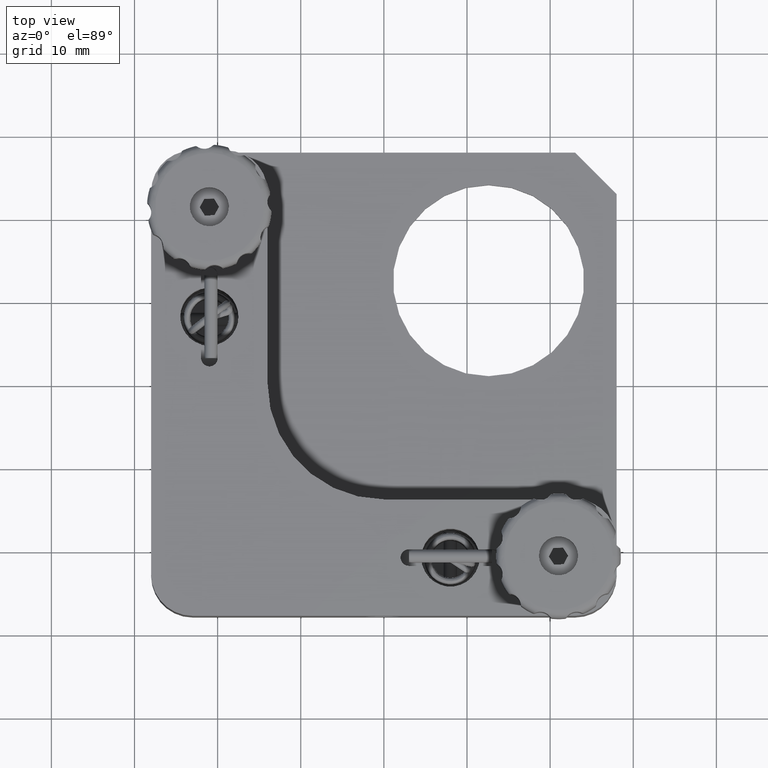
[diagram: clean part render]
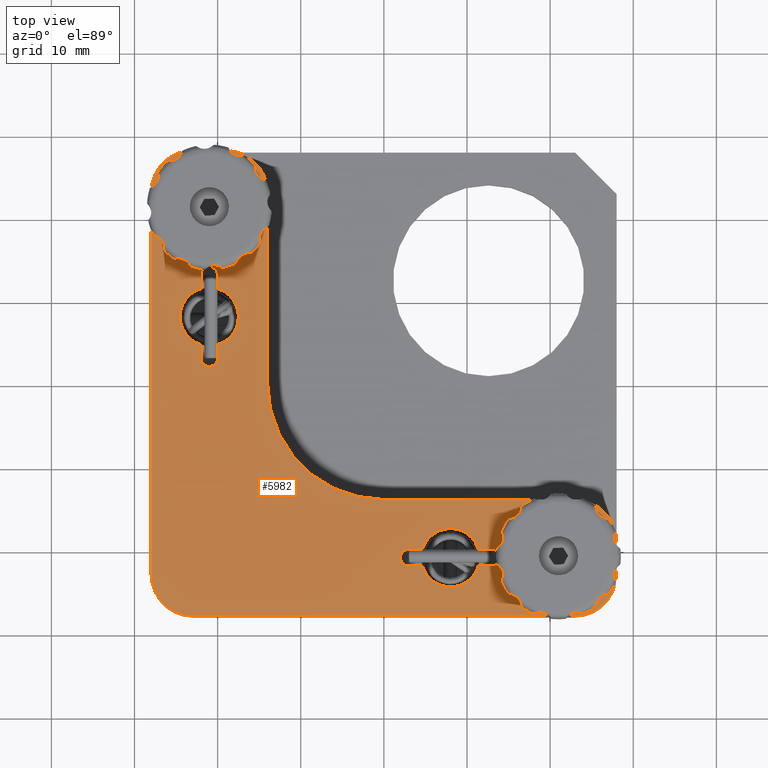
[diagram: same view with one face highlighted and labeled with its STEP entity id]
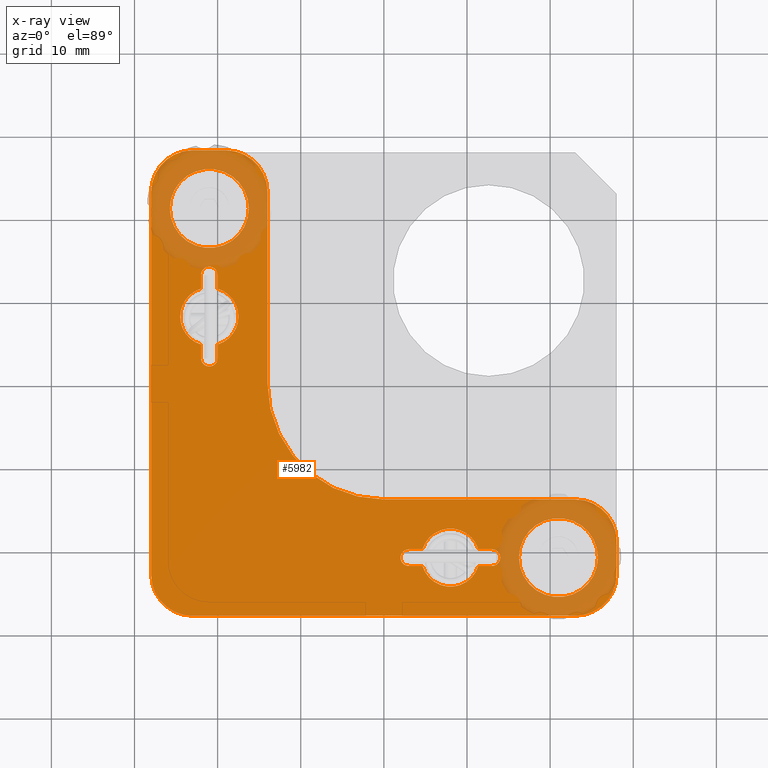
[diagram: x-ray of the same camera — body ghosted, the highlighted face saturated]
A machine part, top view. The second image highlights one B-rep face of the part: STEP entity #5982.
The next image is the same camera in x-ray: the body ghosted, the highlighted face saturated — about 16% of this face is hidden behind the body in this view.
In plain terms, the highlighted planar face has unit normal (0, 0, -1).
Its self-contained STEP definition (entity closure, byte-faithful):
#91 = DIRECTION ( 'NONE',  ( -1.000000000000000000, 0.0000000000000000000, 0.0000000000000000000 ) ) ;
#116 = VECTOR ( 'NONE', #20495, 1000.000000000000000 ) ;
#128 = DIRECTION ( 'NONE',  ( -1.000000000000000000, 0.0000000000000000000, 0.0000000000000000000 ) ) ;
#275 = CARTESIAN_POINT ( 'NONE',  ( 11.35410196624967200, -19.99999999999999600, 6.000000000000048000 ) ) ;
#405 = VERTEX_POINT ( 'NONE', #20147 ) ;
#412 = LINE ( 'NONE', #9128, #10854 ) ;
#451 = EDGE_CURVE ( 'NONE', #18178, #6273, #11936, .T. ) ;
#499 = VECTOR ( 'NONE', #10084, 1000.000000000000000 ) ;
#698 = DIRECTION ( 'NONE',  ( -1.000000000000000000, 0.0000000000000000000, 0.0000000000000000000 ) ) ;
#747 = EDGE_CURVE ( 'NONE', #12582, #7902, #10689, .T. ) ;
#840 = AXIS2_PLACEMENT_3D ( 'NONE', #19495, #2856, #15568 ) ;
#951 = ORIENTED_EDGE ( 'NONE', *, *, #7707, .F. ) ;
#1085 = EDGE_CURVE ( 'NONE', #7902, #5296, #17167, .T. ) ;
#1189 = LINE ( 'NONE', #7950, #7932 ) ;
#1196 = EDGE_LOOP ( 'NONE', ( #15850, #15635 ) ) ;
#1335 = DIRECTION ( 'NONE',  ( -0.0000000000000000000, -2.220446049250313500E-015, 1.000000000000000000 ) ) ;
#1432 = LINE ( 'NONE', #16735, #16118 ) ;
#1464 = EDGE_CURVE ( 'NONE', #3262, #9403, #18147, .T. ) ;
#1519 = EDGE_LOOP ( 'NONE', ( #19504, #4957, #5061, #13216, #15755, #8548, #4801, #15204, #6222, #13073 ) ) ;
#1553 = VERTEX_POINT ( 'NONE', #15694 ) ;
#1625 = ORIENTED_EDGE ( 'NONE', *, *, #5603, .F. ) ;
#1713 = LINE ( 'NONE', #7593, #13633 ) ;
#1776 = CIRCLE ( 'NONE', #12187, 1.000000000000000900 ) ;
#1782 = CARTESIAN_POINT ( 'NONE',  ( -0.0000000000000000000, -1.332267629550188500E-014, 6.000000000000000000 ) ) ;
#1802 = CARTESIAN_POINT ( 'NONE',  ( -25.75000000000000700, 21.00000000000000000, 5.999999999999952000 ) ) ;
#1808 = DIRECTION ( 'NONE',  ( 0.0000000000000000000, 1.000000000000000000, -2.442490654175344800E-015 ) ) ;
#1924 = AXIS2_PLACEMENT_3D ( 'NONE', #6043, #20592, #4652 ) ;
#2176 = VERTEX_POINT ( 'NONE', #19387 ) ;
#2236 = DIRECTION ( 'NONE',  ( 0.0000000000000000000, 2.220446049250313500E-015, -1.000000000000000000 ) ) ;
#2272 = EDGE_CURVE ( 'NONE', #6583, #5601, #11101, .T. ) ;
#2282 = ORIENTED_EDGE ( 'NONE', *, *, #5337, .F. ) ;
#2378 = VECTOR ( 'NONE', #3825, 1000.000000000000000 ) ;
#2435 = EDGE_CURVE ( 'NONE', #405, #15332, #6178, .T. ) ;
#2475 = EDGE_CURVE ( 'NONE', #17961, #7658, #4150, .T. ) ;
#2513 = DIRECTION ( 'NONE',  ( 0.0000000000000000000, 2.220446049250313500E-015, -1.000000000000000000 ) ) ;
#2623 = LINE ( 'NONE', #18808, #116 ) ;
#2663 = DIRECTION ( 'NONE',  ( -1.000000000000000000, 7.542275982507868200E-017, -1.842193859848663800E-031 ) ) ;
#2852 = ORIENTED_EDGE ( 'NONE', *, *, #10044, .F. ) ;
#2856 = DIRECTION ( 'NONE',  ( 0.0000000000000000000, 2.220446049250313500E-015, -1.000000000000000000 ) ) ;
#2928 = DIRECTION ( 'NONE',  ( -1.000000000000000000, 0.0000000000000000000, 0.0000000000000000000 ) ) ;
#2962 = EDGE_CURVE ( 'NONE', #7658, #12099, #1189, .T. ) ;
#3113 = AXIS2_PLACEMENT_3D ( 'NONE', #18260, #18325, #6011 ) ;
#3130 = DIRECTION ( 'NONE',  ( 0.0000000000000000000, 2.220446049250313500E-015, -1.000000000000000000 ) ) ;
#3151 = CARTESIAN_POINT ( 'NONE',  ( -22.99999999999997200, -27.99999999999999600, 6.000000000000066600 ) ) ;
#3152 = VERTEX_POINT ( 'NONE', #18489 ) ;
#3258 = CARTESIAN_POINT ( 'NONE',  ( -20.00000000000000400, 12.99999999999998400, 5.999999999999971600 ) ) ;
#3262 = VERTEX_POINT ( 'NONE', #15726 ) ;
#3354 = CARTESIAN_POINT ( 'NONE',  ( -24.50000000000000400, 7.999999999999996400, 5.999999999999981300 ) ) ;
#3361 = EDGE_CURVE ( 'NONE', #18896, #4552, #13622, .T. ) ;
#3370 = LINE ( 'NONE', #17842, #14069 ) ;
#3400 = CARTESIAN_POINT ( 'NONE',  ( -18.99999999999999600, 23.00000000000000000, 5.999999999999943200 ) ) ;
#3437 = CARTESIAN_POINT ( 'NONE',  ( -20.00000000000000400, 2.999999999999986700, 5.999999999999990200 ) ) ;
#3484 = DIRECTION ( 'NONE',  ( 1.000000000000000000, 0.0000000000000000000, 0.0000000000000000000 ) ) ;
#3524 = CARTESIAN_POINT ( 'NONE',  ( -21.00000000000000400, 2.999999999999986700, 5.999999999999990200 ) ) ;
#3710 = AXIS2_PLACEMENT_3D ( 'NONE', #15025, #18227, #91 ) ;
#3825 = DIRECTION ( 'NONE',  ( 1.000000000000000000, 0.0000000000000000000, -0.0000000000000000000 ) ) ;
#4150 = CIRCLE ( 'NONE', #15583, 1.000000000000000900 ) ;
#4197 = VERTEX_POINT ( 'NONE', #8972 ) ;
#4281 = CARTESIAN_POINT ( 'NONE',  ( 2.999999999999992500, -22.00000000000000700, 6.000000000000057700 ) ) ;
#4316 = CARTESIAN_POINT ( 'NONE',  ( -21.00000000000000400, 12.99999999999998400, 5.999999999999971600 ) ) ;
#4362 = CARTESIAN_POINT ( 'NONE',  ( -22.00000000000000400, 11.35410196624966700, 5.999999999999971600 ) ) ;
#4374 = DIRECTION ( 'NONE',  ( -1.000000000000000000, 0.0000000000000000000, 0.0000000000000000000 ) ) ;
#4376 = EDGE_CURVE ( 'NONE', #6228, #13846, #13599, .T. ) ;
#4416 = CARTESIAN_POINT ( 'NONE',  ( -0.0000000000000000000, -14.00000000000001800, 6.000000000000038200 ) ) ;
#4552 = VERTEX_POINT ( 'NONE', #18793 ) ;
#4586 = CARTESIAN_POINT ( 'NONE',  ( -21.00000000000000400, 21.00000000000000000, 5.999999999999952000 ) ) ;
#4599 = CIRCLE ( 'NONE', #840, 3.499999999999999600 ) ;
#4650 = AXIS2_PLACEMENT_3D ( 'NONE', #12998, #19201, #3484 ) ;
#4652 = DIRECTION ( 'NONE',  ( -1.000000000000000000, 0.0000000000000000000, 0.0000000000000000000 ) ) ;
#4734 = AXIS2_PLACEMENT_3D ( 'NONE', #17265, #12241, #10921 ) ;
#4801 = ORIENTED_EDGE ( 'NONE', *, *, #14771, .T. ) ;
#4867 = LINE ( 'NONE', #3258, #8103 ) ;
#4888 = AXIS2_PLACEMENT_3D ( 'NONE', #4586, #3130, #2928 ) ;
#4957 = ORIENTED_EDGE ( 'NONE', *, *, #12083, .T. ) ;
#5005 = ORIENTED_EDGE ( 'NONE', *, *, #2272, .F. ) ;
#5061 = ORIENTED_EDGE ( 'NONE', *, *, #8565, .F. ) ;
#5164 = AXIS2_PLACEMENT_3D ( 'NONE', #17199, #13793, #15400 ) ;
#5182 = VECTOR ( 'NONE', #8134, 1000.000000000000000 ) ;
#5191 = ORIENTED_EDGE ( 'NONE', *, *, #4376, .F. ) ;
#5210 = CARTESIAN_POINT ( 'NONE',  ( -20.00000000000000400, 4.645898033750298400, 5.999999999999990200 ) ) ;
#5252 = VECTOR ( 'NONE', #17513, 1000.000000000000000 ) ;
#5253 = LINE ( 'NONE', #7025, #499 ) ;
#5288 = AXIS2_PLACEMENT_3D ( 'NONE', #19824, #2236, #698 ) ;
#5296 = VERTEX_POINT ( 'NONE', #4416 ) ;
#5337 = EDGE_CURVE ( 'NONE', #6150, #405, #15312, .T. ) ;
#5418 = LINE ( 'NONE', #13722, #11356 ) ;
#5458 = CIRCLE ( 'NONE', #8925, 4.750000000000000900 ) ;
#5521 = CIRCLE ( 'NONE', #4888, 4.750000000000000900 ) ;
#5584 = DIRECTION ( 'NONE',  ( -1.508455196501573900E-016, -1.000000000000000000, 2.442490654175344800E-015 ) ) ;
#5601 = VERTEX_POINT ( 'NONE', #8323 ) ;
#5603 = EDGE_CURVE ( 'NONE', #16630, #1553, #3370, .T. ) ;
#5902 = EDGE_CURVE ( 'NONE', #15747, #15466, #4599, .T. ) ;
#5982 = ADVANCED_FACE ( 'NONE', ( #20272, #19518, #19030, #7328, #8096 ), #7722, .F. ) ;
#5992 = CARTESIAN_POINT ( 'NONE',  ( -22.00000000000000400, 12.99999999999998400, 5.999999999999971600 ) ) ;
#6011 = DIRECTION ( 'NONE',  ( 1.000000000000000000, 0.0000000000000000000, 0.0000000000000000000 ) ) ;
#6043 = CARTESIAN_POINT ( 'NONE',  ( 0.0000000000000000000, -1.332267629550188500E-014, 6.000000000000000000 ) ) ;
#6051 = DIRECTION ( 'NONE',  ( 1.000000000000000000, 0.0000000000000000000, 0.0000000000000000000 ) ) ;
#6150 = VERTEX_POINT ( 'NONE', #15920 ) ;
#6178 = CIRCLE ( 'NONE', #14645, 1.000000000000004400 ) ;
#6222 = ORIENTED_EDGE ( 'NONE', *, *, #2475, .F. ) ;
#6228 = VERTEX_POINT ( 'NONE', #9962 ) ;
#6273 = VERTEX_POINT ( 'NONE', #17914 ) ;
#6516 = CIRCLE ( 'NONE', #5288, 3.499999999999999600 ) ;
#6523 = EDGE_CURVE ( 'NONE', #5601, #17206, #1713, .T. ) ;
#6530 = ORIENTED_EDGE ( 'NONE', *, *, #20615, .F. ) ;
#6583 = VERTEX_POINT ( 'NONE', #17186 ) ;
#6686 = CARTESIAN_POINT ( 'NONE',  ( -14.00000000000000000, -1.142089681000915000E-014, 6.000000000000000000 ) ) ;
#6698 = EDGE_CURVE ( 'NONE', #15332, #2176, #9152, .T. ) ;
#6727 = DIRECTION ( 'NONE',  ( 1.000000000000000000, 0.0000000000000000000, 0.0000000000000000000 ) ) ;
#6757 = ORIENTED_EDGE ( 'NONE', *, *, #12563, .T. ) ;
#6921 = ORIENTED_EDGE ( 'NONE', *, *, #7888, .F. ) ;
#7018 = CARTESIAN_POINT ( 'NONE',  ( 20.99999999999998900, -21.00000000000000400, 6.000000000000048000 ) ) ;
#7025 = CARTESIAN_POINT ( 'NONE',  ( 2.999999999999985300, -20.00000000000000400, 6.000000000000048000 ) ) ;
#7101 = DIRECTION ( 'NONE',  ( 1.000000000000000000, 0.0000000000000000000, 0.0000000000000000000 ) ) ;
#7115 = AXIS2_PLACEMENT_3D ( 'NONE', #11172, #17749, #20606 ) ;
#7190 = CARTESIAN_POINT ( 'NONE',  ( -22.99999999999997200, 28.00000000000000000, 5.999999999999933400 ) ) ;
#7240 = DIRECTION ( 'NONE',  ( -0.0000000000000000000, -2.220446049250313500E-015, 1.000000000000000000 ) ) ;
#7325 = CARTESIAN_POINT ( 'NONE',  ( 4.645898033750305500, -22.00000000000000700, 6.000000000000057700 ) ) ;
#7328 = FACE_BOUND ( 'NONE', #7937, .T. ) ;
#7359 = CIRCLE ( 'NONE', #15506, 3.499999999999999600 ) ;
#7400 = EDGE_CURVE ( 'NONE', #4552, #13218, #5418, .T. ) ;
#7593 = CARTESIAN_POINT ( 'NONE',  ( 2.999999999999992500, -22.00000000000000700, 6.000000000000057700 ) ) ;
#7658 = VERTEX_POINT ( 'NONE', #5992 ) ;
#7707 = EDGE_CURVE ( 'NONE', #13218, #16630, #15150, .T. ) ;
#7722 = PLANE ( 'NONE',  #1924 ) ;
#7727 = VERTEX_POINT ( 'NONE', #3354 ) ;
#7730 = DIRECTION ( 'NONE',  ( 1.000000000000000000, 0.0000000000000000000, 0.0000000000000000000 ) ) ;
#7888 = EDGE_CURVE ( 'NONE', #5296, #6228, #10318, .T. ) ;
#7902 = VERTEX_POINT ( 'NONE', #6686 ) ;
#7932 = VECTOR ( 'NONE', #19061, 1000.000000000000000 ) ;
#7937 = EDGE_LOOP ( 'NONE', ( #6757, #11837 ) ) ;
#7950 = CARTESIAN_POINT ( 'NONE',  ( -22.00000000000000400, 12.99999999999998400, 5.999999999999971600 ) ) ;
#8094 = CARTESIAN_POINT ( 'NONE',  ( -23.00000000000001100, -23.00000000000000000, 6.000000000000057700 ) ) ;
#8096 = FACE_OUTER_BOUND ( 'NONE', #20101, .T. ) ;
#8103 = VECTOR ( 'NONE', #1808, 1000.000000000000000 ) ;
#8134 = DIRECTION ( 'NONE',  ( -0.0000000000000000000, -1.000000000000000000, 2.442490654175344800E-015 ) ) ;
#8323 = CARTESIAN_POINT ( 'NONE',  ( 2.999999999999992500, -22.00000000000000700, 6.000000000000057700 ) ) ;
#8329 = DIRECTION ( 'NONE',  ( -0.0000000000000000000, -2.220446049250313500E-015, 1.000000000000000000 ) ) ;
#8548 = ORIENTED_EDGE ( 'NONE', *, *, #14945, .T. ) ;
#8565 = EDGE_CURVE ( 'NONE', #19439, #12464, #4867, .T. ) ;
#8648 = ORIENTED_EDGE ( 'NONE', *, *, #16144, .F. ) ;
#8692 = ORIENTED_EDGE ( 'NONE', *, *, #3361, .F. ) ;
#8707 = AXIS2_PLACEMENT_3D ( 'NONE', #11169, #17253, #7730 ) ;
#8797 = EDGE_CURVE ( 'NONE', #2176, #9403, #2623, .T. ) ;
#8925 = AXIS2_PLACEMENT_3D ( 'NONE', #7018, #2513, #18157 ) ;
#8971 = CARTESIAN_POINT ( 'NONE',  ( 12.99999999999999100, -21.00000000000000000, 6.000000000000048000 ) ) ;
#8972 = CARTESIAN_POINT ( 'NONE',  ( -16.25000000000000400, 21.00000000000001400, 5.999999999999952000 ) ) ;
#9109 = ORIENTED_EDGE ( 'NONE', *, *, #6698, .F. ) ;
#9128 = CARTESIAN_POINT ( 'NONE',  ( -22.00000000000000400, 12.99999999999998400, 5.999999999999971600 ) ) ;
#9152 = CIRCLE ( 'NONE', #7115, 1.000000000000004400 ) ;
#9282 = VERTEX_POINT ( 'NONE', #17322 ) ;
#9403 = VERTEX_POINT ( 'NONE', #275 ) ;
#9529 = AXIS2_PLACEMENT_3D ( 'NONE', #10558, #13915, #4374 ) ;
#9586 = CARTESIAN_POINT ( 'NONE',  ( -21.00000000000000400, 21.00000000000000000, 5.999999999999952000 ) ) ;
#9614 = ORIENTED_EDGE ( 'NONE', *, *, #11307, .F. ) ;
#9713 = CARTESIAN_POINT ( 'NONE',  ( 27.99999999999998900, -19.00000000000003900, 6.000000000000048000 ) ) ;
#9962 = CARTESIAN_POINT ( 'NONE',  ( 22.99999999999995400, -14.00000000000002000, 6.000000000000038200 ) ) ;
#10044 = EDGE_CURVE ( 'NONE', #13846, #18896, #18117, .T. ) ;
#10084 = DIRECTION ( 'NONE',  ( -1.000000000000000000, -6.938893903907227400E-016, 1.694818351060767900E-030 ) ) ;
#10318 = LINE ( 'NONE', #18020, #2378 ) ;
#10558 = CARTESIAN_POINT ( 'NONE',  ( -21.00000000000000400, 7.999999999999983100, 5.999999999999981300 ) ) ;
#10689 = LINE ( 'NONE', #11885, #18405 ) ;
#10854 = VECTOR ( 'NONE', #18883, 1000.000000000000000 ) ;
#10921 = DIRECTION ( 'NONE',  ( -1.000000000000000000, 0.0000000000000000000, 0.0000000000000000000 ) ) ;
#11082 = ORIENTED_EDGE ( 'NONE', *, *, #451, .F. ) ;
#11101 = CIRCLE ( 'NONE', #13702, 1.000000000000000900 ) ;
#11169 = CARTESIAN_POINT ( 'NONE',  ( 22.99999999999999300, -19.00000000000000000, 6.000000000000048000 ) ) ;
#11172 = CARTESIAN_POINT ( 'NONE',  ( 12.99999999999999100, -21.00000000000000000, 6.000000000000048000 ) ) ;
#11307 = EDGE_CURVE ( 'NONE', #1553, #18178, #15843, .T. ) ;
#11356 = VECTOR ( 'NONE', #2663, 1000.000000000000000 ) ;
#11374 = EDGE_CURVE ( 'NONE', #18700, #16928, #412, .T. ) ;
#11699 = ORIENTED_EDGE ( 'NONE', *, *, #8797, .F. ) ;
#11795 = VECTOR ( 'NONE', #20216, 1000.000000000000000 ) ;
#11837 = ORIENTED_EDGE ( 'NONE', *, *, #15061, .T. ) ;
#11885 = CARTESIAN_POINT ( 'NONE',  ( -13.99999999999999600, 22.99999999999996400, 5.999999999999943200 ) ) ;
#11936 = LINE ( 'NONE', #14310, #5252 ) ;
#12083 = EDGE_CURVE ( 'NONE', #15466, #12464, #7359, .T. ) ;
#12099 = VERTEX_POINT ( 'NONE', #4362 ) ;
#12187 = AXIS2_PLACEMENT_3D ( 'NONE', #3524, #8329, #14639 ) ;
#12241 = DIRECTION ( 'NONE',  ( 0.0000000000000000000, 2.220446049250313500E-015, -1.000000000000000000 ) ) ;
#12378 = CARTESIAN_POINT ( 'NONE',  ( 13.99999999999999500, -21.00000000000000400, 6.000000000000048000 ) ) ;
#12464 = VERTEX_POINT ( 'NONE', #5210 ) ;
#12563 = EDGE_CURVE ( 'NONE', #19194, #4197, #19791, .T. ) ;
#12576 = AXIS2_PLACEMENT_3D ( 'NONE', #3400, #14529, #6727 ) ;
#12582 = VERTEX_POINT ( 'NONE', #20003 ) ;
#12998 = CARTESIAN_POINT ( 'NONE',  ( 22.99999999999999300, -23.00000000000000000, 6.000000000000057700 ) ) ;
#13073 = ORIENTED_EDGE ( 'NONE', *, *, #19221, .F. ) ;
#13179 = EDGE_CURVE ( 'NONE', #6150, #17206, #14550, .T. ) ;
#13216 = ORIENTED_EDGE ( 'NONE', *, *, #16019, .F. ) ;
#13218 = VERTEX_POINT ( 'NONE', #3151 ) ;
#13599 = CIRCLE ( 'NONE', #8707, 4.999999999999997300 ) ;
#13622 = CIRCLE ( 'NONE', #4650, 4.999999999999997300 ) ;
#13633 = VECTOR ( 'NONE', #20323, 1000.000000000000000 ) ;
#13702 = AXIS2_PLACEMENT_3D ( 'NONE', #15239, #7240, #7101 ) ;
#13722 = CARTESIAN_POINT ( 'NONE',  ( 22.99999999999995400, -28.00000000000000000, 6.000000000000066600 ) ) ;
#13793 = DIRECTION ( 'NONE',  ( 0.0000000000000000000, 2.220446049250313500E-015, -1.000000000000000000 ) ) ;
#13846 = VERTEX_POINT ( 'NONE', #18357 ) ;
#13902 = DIRECTION ( 'NONE',  ( -1.000000000000000000, 0.0000000000000000000, 0.0000000000000000000 ) ) ;
#13915 = DIRECTION ( 'NONE',  ( 0.0000000000000000000, 2.220446049250313500E-015, -1.000000000000000000 ) ) ;
#14069 = VECTOR ( 'NONE', #19436, 1000.000000000000000 ) ;
#14095 = CARTESIAN_POINT ( 'NONE',  ( -22.00000000000000400, 2.999999999999986700, 5.999999999999990200 ) ) ;
#14310 = CARTESIAN_POINT ( 'NONE',  ( -19.00000000000003200, 28.00000000000000000, 5.999999999999933400 ) ) ;
#14405 = DIRECTION ( 'NONE',  ( 0.0000000000000000000, 2.220446049250313500E-015, -1.000000000000000000 ) ) ;
#14452 = CARTESIAN_POINT ( 'NONE',  ( 27.99999999999998900, -22.99999999999996400, 6.000000000000057700 ) ) ;
#14512 = ORIENTED_EDGE ( 'NONE', *, *, #7400, .F. ) ;
#14529 = DIRECTION ( 'NONE',  ( 0.0000000000000000000, 2.220446049250313500E-015, -1.000000000000000000 ) ) ;
#14550 = CIRCLE ( 'NONE', #4734, 3.499999999999999600 ) ;
#14639 = DIRECTION ( 'NONE',  ( 1.000000000000000000, 0.0000000000000000000, 0.0000000000000000000 ) ) ;
#14645 = AXIS2_PLACEMENT_3D ( 'NONE', #8971, #1335, #6051 ) ;
#14771 = EDGE_CURVE ( 'NONE', #7727, #12099, #6516, .T. ) ;
#14872 = ORIENTED_EDGE ( 'NONE', *, *, #6523, .F. ) ;
#14945 = EDGE_CURVE ( 'NONE', #18700, #7727, #15973, .T. ) ;
#15025 = CARTESIAN_POINT ( 'NONE',  ( 7.999999999999989300, -21.00000000000000400, 6.000000000000048000 ) ) ;
#15048 = DIRECTION ( 'NONE',  ( 0.0000000000000000000, 1.000000000000000000, -2.442490654175344800E-015 ) ) ;
#15061 = EDGE_CURVE ( 'NONE', #4197, #19194, #5521, .T. ) ;
#15150 = CIRCLE ( 'NONE', #19790, 5.000000000000000900 ) ;
#15204 = ORIENTED_EDGE ( 'NONE', *, *, #2962, .F. ) ;
#15239 = CARTESIAN_POINT ( 'NONE',  ( 2.999999999999988900, -21.00000000000000400, 6.000000000000048000 ) ) ;
#15242 = ORIENTED_EDGE ( 'NONE', *, *, #1464, .T. ) ;
#15269 = ORIENTED_EDGE ( 'NONE', *, *, #13179, .T. ) ;
#15287 = DIRECTION ( 'NONE',  ( 0.0000000000000000000, 2.220446049250313500E-015, -1.000000000000000000 ) ) ;
#15312 = LINE ( 'NONE', #4281, #11795 ) ;
#15314 = EDGE_CURVE ( 'NONE', #9282, #3152, #15449, .T. ) ;
#15332 = VERTEX_POINT ( 'NONE', #12378 ) ;
#15400 = DIRECTION ( 'NONE',  ( -1.000000000000000000, 0.0000000000000000000, 0.0000000000000000000 ) ) ;
#15449 = CIRCLE ( 'NONE', #5164, 4.750000000000000900 ) ;
#15466 = VERTEX_POINT ( 'NONE', #16535 ) ;
#15506 = AXIS2_PLACEMENT_3D ( 'NONE', #16891, #15287, #13902 ) ;
#15568 = DIRECTION ( 'NONE',  ( -1.000000000000000000, 0.0000000000000000000, 0.0000000000000000000 ) ) ;
#15575 = DIRECTION ( 'NONE',  ( -0.0000000000000000000, -2.220446049250313500E-015, 1.000000000000000000 ) ) ;
#15583 = AXIS2_PLACEMENT_3D ( 'NONE', #4316, #15575, #18719 ) ;
#15625 = CARTESIAN_POINT ( 'NONE',  ( -22.00000000000000400, 4.645898033750298400, 5.999999999999990200 ) ) ;
#15635 = ORIENTED_EDGE ( 'NONE', *, *, #17618, .T. ) ;
#15694 = CARTESIAN_POINT ( 'NONE',  ( -28.00000000000000400, 22.99999999999996800, 5.999999999999943200 ) ) ;
#15726 = CARTESIAN_POINT ( 'NONE',  ( 4.645898033750307300, -20.00000000000000400, 6.000000000000048000 ) ) ;
#15747 = VERTEX_POINT ( 'NONE', #17151 ) ;
#15755 = ORIENTED_EDGE ( 'NONE', *, *, #11374, .F. ) ;
#15759 = CARTESIAN_POINT ( 'NONE',  ( -20.00000000000000400, 12.99999999999998400, 5.999999999999971600 ) ) ;
#15843 = CIRCLE ( 'NONE', #3113, 4.999999999999997300 ) ;
#15850 = ORIENTED_EDGE ( 'NONE', *, *, #15314, .T. ) ;
#15920 = CARTESIAN_POINT ( 'NONE',  ( 11.35410196624967400, -22.00000000000000700, 6.000000000000057700 ) ) ;
#15940 = DIRECTION ( 'NONE',  ( 0.0000000000000000000, 2.220446049250313500E-015, -1.000000000000000000 ) ) ;
#15958 = DIRECTION ( 'NONE',  ( -0.0000000000000000000, -2.220446049250313500E-015, 1.000000000000000000 ) ) ;
#15973 = CIRCLE ( 'NONE', #9529, 3.499999999999999600 ) ;
#16019 = EDGE_CURVE ( 'NONE', #16928, #19439, #1776, .T. ) ;
#16118 = VECTOR ( 'NONE', #15048, 1000.000000000000000 ) ;
#16144 = EDGE_CURVE ( 'NONE', #3262, #6583, #5253, .T. ) ;
#16535 = CARTESIAN_POINT ( 'NONE',  ( -17.50000000000000400, 7.999999999999996400, 5.999999999999981300 ) ) ;
#16630 = VERTEX_POINT ( 'NONE', #18007 ) ;
#16662 = EDGE_LOOP ( 'NONE', ( #15242, #11699, #9109, #18400, #2282, #15269, #14872, #5005, #8648 ) ) ;
#16735 = CARTESIAN_POINT ( 'NONE',  ( -20.00000000000000400, 12.99999999999998400, 5.999999999999971600 ) ) ;
#16891 = CARTESIAN_POINT ( 'NONE',  ( -21.00000000000000400, 7.999999999999983100, 5.999999999999981300 ) ) ;
#16928 = VERTEX_POINT ( 'NONE', #14095 ) ;
#17134 = ORIENTED_EDGE ( 'NONE', *, *, #1085, .F. ) ;
#17151 = CARTESIAN_POINT ( 'NONE',  ( -20.00000000000000400, 11.35410196624966700, 5.999999999999971600 ) ) ;
#17167 = CIRCLE ( 'NONE', #17286, 14.00000000000000000 ) ;
#17186 = CARTESIAN_POINT ( 'NONE',  ( 2.999999999999985300, -20.00000000000000400, 6.000000000000048000 ) ) ;
#17199 = CARTESIAN_POINT ( 'NONE',  ( 20.99999999999998900, -21.00000000000000400, 6.000000000000048000 ) ) ;
#17206 = VERTEX_POINT ( 'NONE', #7325 ) ;
#17253 = DIRECTION ( 'NONE',  ( 0.0000000000000000000, 2.220446049250313500E-015, -1.000000000000000000 ) ) ;
#17265 = CARTESIAN_POINT ( 'NONE',  ( 7.999999999999989300, -21.00000000000000400, 6.000000000000048000 ) ) ;
#17286 = AXIS2_PLACEMENT_3D ( 'NONE', #1782, #15958, #19296 ) ;
#17322 = CARTESIAN_POINT ( 'NONE',  ( 16.24999999999998900, -21.00000000000000400, 6.000000000000048000 ) ) ;
#17326 = CIRCLE ( 'NONE', #12576, 5.000000000000000900 ) ;
#17513 = DIRECTION ( 'NONE',  ( 1.000000000000000000, 0.0000000000000000000, -0.0000000000000000000 ) ) ;
#17618 = EDGE_CURVE ( 'NONE', #3152, #9282, #5458, .T. ) ;
#17749 = DIRECTION ( 'NONE',  ( -0.0000000000000000000, -2.220446049250313500E-015, 1.000000000000000000 ) ) ;
#17842 = CARTESIAN_POINT ( 'NONE',  ( -28.00000000000000400, 22.99999999999996400, 5.999999999999943200 ) ) ;
#17914 = CARTESIAN_POINT ( 'NONE',  ( -19.00000000000003200, 28.00000000000000000, 5.999999999999933400 ) ) ;
#17961 = VERTEX_POINT ( 'NONE', #15759 ) ;
#18007 = CARTESIAN_POINT ( 'NONE',  ( -28.00000000000001100, -22.99999999999996100, 6.000000000000057700 ) ) ;
#18020 = CARTESIAN_POINT ( 'NONE',  ( 22.99999999999995400, -14.00000000000001800, 6.000000000000038200 ) ) ;
#18117 = LINE ( 'NONE', #9713, #5182 ) ;
#18147 = CIRCLE ( 'NONE', #3710, 3.499999999999999600 ) ;
#18157 = DIRECTION ( 'NONE',  ( -1.000000000000000000, 0.0000000000000000000, 0.0000000000000000000 ) ) ;
#18178 = VERTEX_POINT ( 'NONE', #7190 ) ;
#18227 = DIRECTION ( 'NONE',  ( 0.0000000000000000000, 2.220446049250313500E-015, -1.000000000000000000 ) ) ;
#18260 = CARTESIAN_POINT ( 'NONE',  ( -23.00000000000000700, 23.00000000000000000, 5.999999999999943200 ) ) ;
#18325 = DIRECTION ( 'NONE',  ( 0.0000000000000000000, 2.220446049250313500E-015, -1.000000000000000000 ) ) ;
#18357 = CARTESIAN_POINT ( 'NONE',  ( 27.99999999999998900, -19.00000000000003900, 6.000000000000048000 ) ) ;
#18400 = ORIENTED_EDGE ( 'NONE', *, *, #2435, .F. ) ;
#18405 = VECTOR ( 'NONE', #5584, 1000.000000000000000 ) ;
#18489 = CARTESIAN_POINT ( 'NONE',  ( 25.74999999999999300, -20.99999999999998900, 6.000000000000048000 ) ) ;
#18700 = VERTEX_POINT ( 'NONE', #15625 ) ;
#18719 = DIRECTION ( 'NONE',  ( 1.000000000000000000, 0.0000000000000000000, 0.0000000000000000000 ) ) ;
#18793 = CARTESIAN_POINT ( 'NONE',  ( 22.99999999999995400, -28.00000000000000000, 6.000000000000066600 ) ) ;
#18808 = CARTESIAN_POINT ( 'NONE',  ( 2.999999999999985300, -20.00000000000000400, 6.000000000000048000 ) ) ;
#18883 = DIRECTION ( 'NONE',  ( -0.0000000000000000000, -1.000000000000000000, 2.442490654175344800E-015 ) ) ;
#18896 = VERTEX_POINT ( 'NONE', #14452 ) ;
#18984 = ORIENTED_EDGE ( 'NONE', *, *, #747, .F. ) ;
#19030 = FACE_BOUND ( 'NONE', #1519, .T. ) ;
#19061 = DIRECTION ( 'NONE',  ( -0.0000000000000000000, -1.000000000000000000, 2.442490654175344800E-015 ) ) ;
#19105 = AXIS2_PLACEMENT_3D ( 'NONE', #9586, #14405, #128 ) ;
#19194 = VERTEX_POINT ( 'NONE', #1802 ) ;
#19201 = DIRECTION ( 'NONE',  ( 0.0000000000000000000, 2.220446049250313500E-015, -1.000000000000000000 ) ) ;
#19221 = EDGE_CURVE ( 'NONE', #15747, #17961, #1432, .T. ) ;
#19296 = DIRECTION ( 'NONE',  ( -1.000000000000000000, 0.0000000000000000000, 0.0000000000000000000 ) ) ;
#19387 = CARTESIAN_POINT ( 'NONE',  ( 12.99999999999998800, -19.99999999999999600, 6.000000000000048000 ) ) ;
#19436 = DIRECTION ( 'NONE',  ( 1.508455196501573600E-016, 1.000000000000000000, -2.442490654175344800E-015 ) ) ;
#19439 = VERTEX_POINT ( 'NONE', #3437 ) ;
#19495 = CARTESIAN_POINT ( 'NONE',  ( -21.00000000000000400, 7.999999999999983100, 5.999999999999981300 ) ) ;
#19504 = ORIENTED_EDGE ( 'NONE', *, *, #5902, .T. ) ;
#19518 = FACE_BOUND ( 'NONE', #1196, .T. ) ;
#19790 = AXIS2_PLACEMENT_3D ( 'NONE', #8094, #15940, #20684 ) ;
#19791 = CIRCLE ( 'NONE', #19105, 4.750000000000000900 ) ;
#19824 = CARTESIAN_POINT ( 'NONE',  ( -21.00000000000000400, 7.999999999999983100, 5.999999999999981300 ) ) ;
#20003 = CARTESIAN_POINT ( 'NONE',  ( -13.99999999999999600, 22.99999999999996400, 5.999999999999943200 ) ) ;
#20101 = EDGE_LOOP ( 'NONE', ( #17134, #18984, #6530, #11082, #9614, #1625, #951, #14512, #8692, #2852, #5191, #6921 ) ) ;
#20147 = CARTESIAN_POINT ( 'NONE',  ( 12.99999999999999500, -22.00000000000000700, 6.000000000000057700 ) ) ;
#20216 = DIRECTION ( 'NONE',  ( 1.000000000000000000, 0.0000000000000000000, -0.0000000000000000000 ) ) ;
#20272 = FACE_BOUND ( 'NONE', #16662, .T. ) ;
#20323 = DIRECTION ( 'NONE',  ( 1.000000000000000000, 0.0000000000000000000, -0.0000000000000000000 ) ) ;
#20495 = DIRECTION ( 'NONE',  ( -1.000000000000000000, -6.938893903907227400E-016, 1.694818351060767900E-030 ) ) ;
#20592 = DIRECTION ( 'NONE',  ( 0.0000000000000000000, 2.220446049250313500E-015, -1.000000000000000000 ) ) ;
#20606 = DIRECTION ( 'NONE',  ( 1.000000000000000000, 0.0000000000000000000, 0.0000000000000000000 ) ) ;
#20615 = EDGE_CURVE ( 'NONE', #6273, #12582, #17326, .T. ) ;
#20684 = DIRECTION ( 'NONE',  ( -1.000000000000000000, 0.0000000000000000000, 0.0000000000000000000 ) ) ;